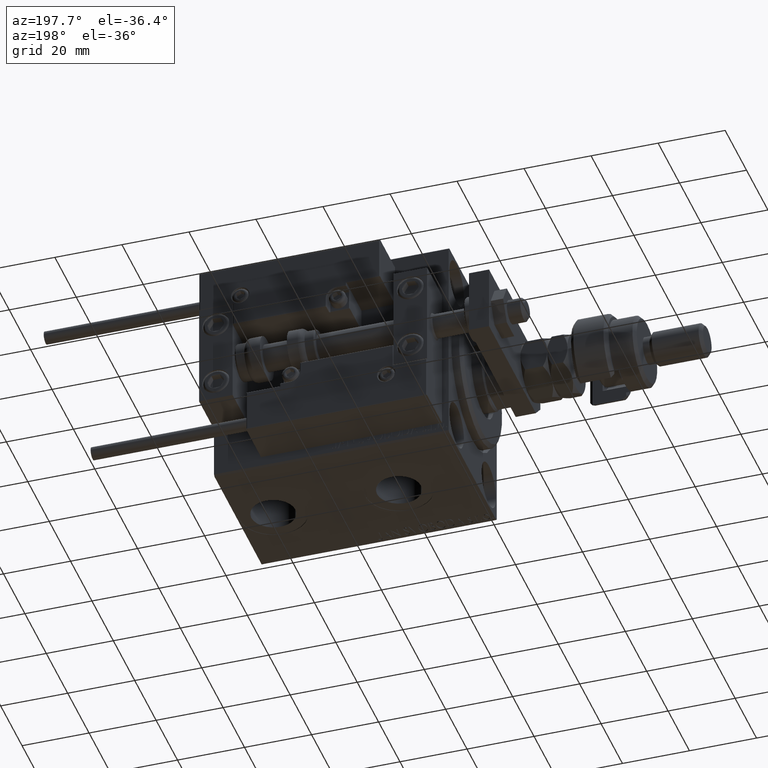
[diagram: clean part render]
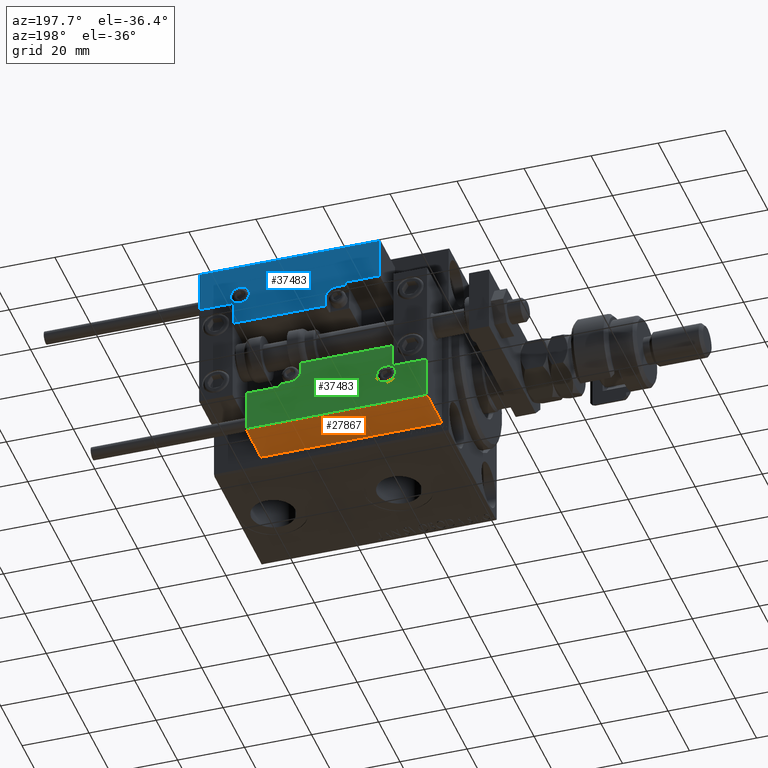
[diagram: same view with three faces highlighted in distinct colors, each labeled with its STEP entity id]
A machine part, auxiliary view with three faces highlighted in distinct colors.
Their STEP definitions:

[orange] entity #27867 — the highlighted planar face has unit normal (0, 0, 1).
#936 = CARTESIAN_POINT ( 'NONE',  ( 27.00000000000006395, 20.00000000000001776, 14.00000000000000000 ) ) ;
#9361 = EDGE_CURVE ( 'NONE', #43738, #37309, #24165, .T. ) ;
#10397 = PLANE ( 'NONE',  #49712 ) ;
#10932 = FACE_OUTER_BOUND ( 'NONE', #20922, .T. ) ;
#12456 = CARTESIAN_POINT ( 'NONE',  ( -26.99999999999993605, 20.00000000000002132, 0.000000000000000000 ) ) ;
#12812 = CARTESIAN_POINT ( 'NONE',  ( 27.00000000000006395, 20.00000000000001776, 13.70000000000000107 ) ) ;
#13449 = CARTESIAN_POINT ( 'NONE',  ( -26.99999999999993605, 20.00000000000002132, 13.70000000000000107 ) ) ;
#15071 = DIRECTION ( 'NONE',  ( -0.000000000000000000, -0.000000000000000000, -1.000000000000000000 ) ) ;
#15616 = LINE ( 'NONE', #32525, #41939 ) ;
#17835 = VECTOR ( 'NONE', #31191, 1000.000000000000000 ) ;
#18370 = DIRECTION ( 'NONE',  ( -0.000000000000000000, -0.000000000000000000, -1.000000000000000000 ) ) ;
#20922 = EDGE_LOOP ( 'NONE', ( #39310, #36367, #26504, #42927 ) ) ;
#22463 = DIRECTION ( 'NONE',  ( -6.424901762877063495E-17, -1.000000000000000000, 0.000000000000000000 ) ) ;
#23509 = EDGE_CURVE ( 'NONE', #46354, #37309, #43316, .T. ) ;
#23629 = EDGE_CURVE ( 'NONE', #43738, #52807, #15616, .T. ) ;
#24165 = LINE ( 'NONE', #36279, #34686 ) ;
#26157 = LINE ( 'NONE', #936, #49026 ) ;
#26504 = ORIENTED_EDGE ( 'NONE', *, *, #32685, .T. ) ;
#27553 = DIRECTION ( 'NONE',  ( 1.000000000000000000, -6.424901762877063495E-17, 0.000000000000000000 ) ) ;
#27867 = ADVANCED_FACE ( 'NONE', ( #10932 ), #10397, .F. ) ;
#31191 = DIRECTION ( 'NONE',  ( -1.000000000000000000, 6.424901762877062263E-17, 0.000000000000000000 ) ) ;
#31245 = CARTESIAN_POINT ( 'NONE',  ( 27.00000000000006395, 20.00000000000001776, 0.000000000000000000 ) ) ;
#32525 = CARTESIAN_POINT ( 'NONE',  ( 27.00000000000006395, 20.00000000000001776, 13.70000000000000107 ) ) ;
#32685 = EDGE_CURVE ( 'NONE', #52807, #46354, #26157, .T. ) ;
#34686 = VECTOR ( 'NONE', #15071, 1000.000000000000000 ) ;
#35104 = CARTESIAN_POINT ( 'NONE',  ( 27.00000000000006395, 20.00000000000001776, 14.00000000000000000 ) ) ;
#36279 = CARTESIAN_POINT ( 'NONE',  ( -26.99999999999993605, 20.00000000000002132, 14.00000000000000000 ) ) ;
#36367 = ORIENTED_EDGE ( 'NONE', *, *, #23629, .T. ) ;
#37309 = VERTEX_POINT ( 'NONE', #12456 ) ;
#38730 = CARTESIAN_POINT ( 'NONE',  ( 27.00000000000006395, 20.00000000000001776, 0.000000000000000000 ) ) ;
#39310 = ORIENTED_EDGE ( 'NONE', *, *, #9361, .F. ) ;
#41939 = VECTOR ( 'NONE', #51927, 1000.000000000000000 ) ;
#42927 = ORIENTED_EDGE ( 'NONE', *, *, #23509, .T. ) ;
#43316 = LINE ( 'NONE', #38730, #17835 ) ;
#43738 = VERTEX_POINT ( 'NONE', #13449 ) ;
#46354 = VERTEX_POINT ( 'NONE', #31245 ) ;
#49026 = VECTOR ( 'NONE', #18370, 1000.000000000000000 ) ;
#49712 = AXIS2_PLACEMENT_3D ( 'NONE', #35104, #22463, #27553 ) ;
#51927 = DIRECTION ( 'NONE',  ( 1.000000000000000000, -6.424901762877063495E-17, -0.000000000000000000 ) ) ;
#52807 = VERTEX_POINT ( 'NONE', #12812 ) ;

[blue] entity #37483 — the highlighted planar face has unit normal (0, 1, -0).
#870 = EDGE_LOOP ( 'NONE', ( #4540, #37579, #13233, #35653, #52111, #46212, #8251, #15991, #1337, #9496, #46297 ) ) ;
#880 = CARTESIAN_POINT ( 'NONE',  ( 27.00000000000006395, 7.300000000000007816, 14.00000000000000000 ) ) ;
#1337 = ORIENTED_EDGE ( 'NONE', *, *, #47647, .T. ) ;
#2070 = CARTESIAN_POINT ( 'NONE',  ( -11.99999999999994849, 9.800000000000004263, 14.00000000000000000 ) ) ;
#2210 = VERTEX_POINT ( 'NONE', #38892 ) ;
#3527 = EDGE_CURVE ( 'NONE', #26136, #52571, #22685, .T. ) ;
#3815 = EDGE_CURVE ( 'NONE', #24429, #13550, #45649, .T. ) ;
#4118 = CARTESIAN_POINT ( 'NONE',  ( 10.69999999999999929, 0.3000000000000032085, 14.00000000000000000 ) ) ;
#4540 = ORIENTED_EDGE ( 'NONE', *, *, #40488, .T. ) ;
#4734 = LINE ( 'NONE', #46099, #41087 ) ;
#5435 = AXIS2_PLACEMENT_3D ( 'NONE', #40487, #45067, #32166 ) ;
#5741 = DIRECTION ( 'NONE',  ( 0.000000000000000000, -0.000000000000000000, -1.000000000000000000 ) ) ;
#6249 = EDGE_CURVE ( 'NONE', #8359, #7219, #31634, .T. ) ;
#6537 = CARTESIAN_POINT ( 'NONE',  ( 16.69999999999999929, 7.300000000000009592, 14.00000000000000000 ) ) ;
#7219 = VERTEX_POINT ( 'NONE', #6537 ) ;
#7314 = EDGE_CURVE ( 'NONE', #23072, #45921, #19132, .T. ) ;
#7668 = EDGE_CURVE ( 'NONE', #32443, #2210, #28581, .T. ) ;
#8251 = ORIENTED_EDGE ( 'NONE', *, *, #50049, .T. ) ;
#8359 = VERTEX_POINT ( 'NONE', #19664 ) ;
#9496 = ORIENTED_EDGE ( 'NONE', *, *, #3527, .T. ) ;
#10800 = FACE_OUTER_BOUND ( 'NONE', #870, .T. ) ;
#11329 = FACE_BOUND ( 'NONE', #17893, .T. ) ;
#12038 = LINE ( 'NONE', #12566, #21619 ) ;
#12566 = CARTESIAN_POINT ( 'NONE',  ( 17.00000000000000000, 6.300000000000003375, 14.00000000000000000 ) ) ;
#12605 = CARTESIAN_POINT ( 'NONE',  ( 26.70000000000006324, 20.00000000000001776, 14.00000000000000000 ) ) ;
#12957 = CARTESIAN_POINT ( 'NONE',  ( -26.99999999999993605, 19.70000000000002061, 14.00000000000000000 ) ) ;
#13049 = DIRECTION ( 'NONE',  ( -0.000000000000000000, 1.000000000000000000, -0.000000000000000000 ) ) ;
#13233 = ORIENTED_EDGE ( 'NONE', *, *, #28048, .T. ) ;
#13550 = VERTEX_POINT ( 'NONE', #28546 ) ;
#13634 = VERTEX_POINT ( 'NONE', #4118 ) ;
#15180 = DIRECTION ( 'NONE',  ( -8.006416042969869188E-16, -1.000000000000000000, 0.000000000000000000 ) ) ;
#15827 = DIRECTION ( 'NONE',  ( 1.000000000000000000, 0.000000000000000000, 0.000000000000000000 ) ) ;
#15991 = ORIENTED_EDGE ( 'NONE', *, *, #7314, .T. ) ;
#16061 = EDGE_CURVE ( 'NONE', #45411, #13634, #19339, .T. ) ;
#16116 = VECTOR ( 'NONE', #48635, 1000.000000000000000 ) ;
#16427 = VECTOR ( 'NONE', #15180, 1000.000000000000000 ) ;
#17893 = EDGE_LOOP ( 'NONE', ( #20868, #24049 ) ) ;
#18273 = DIRECTION ( 'NONE',  ( 1.000000000000000000, -0.000000000000000000, 0.000000000000000000 ) ) ;
#18308 = DIRECTION ( 'NONE',  ( -0.000000000000000000, 0.000000000000000000, 1.000000000000000000 ) ) ;
#18716 = EDGE_CURVE ( 'NONE', #13550, #24429, #21141, .T. ) ;
#18927 = CARTESIAN_POINT ( 'NONE',  ( -26.69999999999994600, 7.000000000000005329, 14.00000000000000000 ) ) ;
#19132 = LINE ( 'NONE', #12605, #43215 ) ;
#19339 = LINE ( 'NONE', #27124, #33890 ) ;
#19664 = CARTESIAN_POINT ( 'NONE',  ( 16.69999999999999929, 6.300000000000003375, 14.00000000000000000 ) ) ;
#20121 = DIRECTION ( 'NONE',  ( 0.000000000000000000, 1.000000000000000000, -0.000000000000000000 ) ) ;
#20656 = CARTESIAN_POINT ( 'NONE',  ( -26.69999999999994600, 7.300000000000005151, 14.00000000000000000 ) ) ;
#20868 = ORIENTED_EDGE ( 'NONE', *, *, #3815, .T. ) ;
#20908 = LINE ( 'NONE', #45122, #16116 ) ;
#21141 = CIRCLE ( 'NONE', #28003, 2.800000000000000266 ) ;
#21619 = VECTOR ( 'NONE', #39789, 1000.000000000000000 ) ;
#21661 = CARTESIAN_POINT ( 'NONE',  ( 10.69999999999999929, 3.000000000000003109, 14.00000000000000000 ) ) ;
#21842 = LINE ( 'NONE', #30443, #39479 ) ;
#22685 = LINE ( 'NONE', #18927, #16427 ) ;
#23072 = VERTEX_POINT ( 'NONE', #46348 ) ;
#23121 = VECTOR ( 'NONE', #29335, 1000.000000000000000 ) ;
#24049 = ORIENTED_EDGE ( 'NONE', *, *, #18716, .T. ) ;
#24429 = VERTEX_POINT ( 'NONE', #2070 ) ;
#25340 = DIRECTION ( 'NONE',  ( 1.000000000000000000, 0.000000000000000000, 0.000000000000000000 ) ) ;
#26136 = VERTEX_POINT ( 'NONE', #43793 ) ;
#27124 = CARTESIAN_POINT ( 'NONE',  ( 11.00000000000000000, 0.3000000000000032085, 14.00000000000000000 ) ) ;
#27866 = CARTESIAN_POINT ( 'NONE',  ( 26.70000000000006324, 19.70000000000001705, 14.00000000000000000 ) ) ;
#28003 = AXIS2_PLACEMENT_3D ( 'NONE', #48891, #48372, #15827 ) ;
#28048 = EDGE_CURVE ( 'NONE', #13634, #32443, #4734, .T. ) ;
#28546 = CARTESIAN_POINT ( 'NONE',  ( -17.59999999999994813, 9.800000000000004263, 14.00000000000000000 ) ) ;
#28581 = CIRCLE ( 'NONE', #5435, 3.299999999999997158 ) ;
#29335 = DIRECTION ( 'NONE',  ( -1.000000000000000000, 6.424901762877063495E-17, -0.000000000000000000 ) ) ;
#30167 = EDGE_CURVE ( 'NONE', #52571, #50311, #21842, .T. ) ;
#30443 = CARTESIAN_POINT ( 'NONE',  ( -16.99999999999999289, 7.300000000000003375, 14.00000000000000000 ) ) ;
#31100 = VECTOR ( 'NONE', #39981, 1000.000000000000000 ) ;
#31634 = LINE ( 'NONE', #43753, #31100 ) ;
#32166 = DIRECTION ( 'NONE',  ( 1.000000000000000000, 0.000000000000000000, 0.000000000000000000 ) ) ;
#32443 = VERTEX_POINT ( 'NONE', #21661 ) ;
#33685 = CARTESIAN_POINT ( 'NONE',  ( -14.79999999999994920, 9.800000000000004263, 14.00000000000000000 ) ) ;
#33890 = VECTOR ( 'NONE', #18273, 1000.000000000000000 ) ;
#35242 = PLANE ( 'NONE',  #50050 ) ;
#35653 = ORIENTED_EDGE ( 'NONE', *, *, #7668, .T. ) ;
#35723 = EDGE_CURVE ( 'NONE', #2210, #8359, #12038, .T. ) ;
#35777 = DIRECTION ( 'NONE',  ( 1.000000000000000000, 0.000000000000000000, 0.000000000000000000 ) ) ;
#36762 = CARTESIAN_POINT ( 'NONE',  ( -16.69999999999999218, 7.300000000000003375, 14.00000000000000000 ) ) ;
#37142 = LINE ( 'NONE', #12957, #23121 ) ;
#37483 = ADVANCED_FACE ( 'NONE', ( #11329, #10800 ), #35242, .T. ) ;
#37579 = ORIENTED_EDGE ( 'NONE', *, *, #16061, .T. ) ;
#38892 = CARTESIAN_POINT ( 'NONE',  ( 13.99999999999999822, 6.300000000000001599, 14.00000000000000000 ) ) ;
#39479 = VECTOR ( 'NONE', #46068, 1000.000000000000000 ) ;
#39789 = DIRECTION ( 'NONE',  ( 1.000000000000000000, 5.782411586589357639E-16, -0.000000000000000000 ) ) ;
#39981 = DIRECTION ( 'NONE',  ( 9.912705577010318647E-16, 1.000000000000000000, 0.000000000000000000 ) ) ;
#40399 = VECTOR ( 'NONE', #44981, 1000.000000000000000 ) ;
#40487 = CARTESIAN_POINT ( 'NONE',  ( 13.99999999999999822, 3.000000000000002665, 14.00000000000000000 ) ) ;
#40488 = EDGE_CURVE ( 'NONE', #50311, #45411, #20908, .T. ) ;
#41087 = VECTOR ( 'NONE', #13049, 1000.000000000000000 ) ;
#41197 = LINE ( 'NONE', #880, #40399 ) ;
#42203 = AXIS2_PLACEMENT_3D ( 'NONE', #33685, #5741, #25340 ) ;
#43215 = VECTOR ( 'NONE', #20121, 1000.000000000000000 ) ;
#43753 = CARTESIAN_POINT ( 'NONE',  ( 16.69999999999999929, 7.000000000000009770, 14.00000000000000000 ) ) ;
#43793 = CARTESIAN_POINT ( 'NONE',  ( -26.69999999999993534, 19.70000000000002061, 14.00000000000000000 ) ) ;
#44735 = CARTESIAN_POINT ( 'NONE',  ( -16.69999999999999218, 0.3000000000000032085, 14.00000000000000000 ) ) ;
#44981 = DIRECTION ( 'NONE',  ( 1.000000000000000000, -1.734723475976796001E-16, 0.000000000000000000 ) ) ;
#45067 = DIRECTION ( 'NONE',  ( 0.000000000000000000, -0.000000000000000000, -1.000000000000000000 ) ) ;
#45122 = CARTESIAN_POINT ( 'NONE',  ( -16.69999999999999218, 3.252606517456513302E-15, 14.00000000000000000 ) ) ;
#45411 = VERTEX_POINT ( 'NONE', #44735 ) ;
#45649 = CIRCLE ( 'NONE', #42203, 2.800000000000000266 ) ;
#45921 = VERTEX_POINT ( 'NONE', #27866 ) ;
#46068 = DIRECTION ( 'NONE',  ( 1.000000000000000000, -1.734723475976815230E-16, 0.000000000000000000 ) ) ;
#46099 = CARTESIAN_POINT ( 'NONE',  ( 10.69999999999999929, 3.000000000000003109, 14.00000000000000000 ) ) ;
#46212 = ORIENTED_EDGE ( 'NONE', *, *, #6249, .T. ) ;
#46297 = ORIENTED_EDGE ( 'NONE', *, *, #30167, .T. ) ;
#46348 = CARTESIAN_POINT ( 'NONE',  ( 26.70000000000006324, 7.300000000000007816, 14.00000000000000000 ) ) ;
#47647 = EDGE_CURVE ( 'NONE', #45921, #26136, #37142, .T. ) ;
#48372 = DIRECTION ( 'NONE',  ( 0.000000000000000000, -0.000000000000000000, -1.000000000000000000 ) ) ;
#48635 = DIRECTION ( 'NONE',  ( 0.000000000000000000, -1.000000000000000000, 0.000000000000000000 ) ) ;
#48891 = CARTESIAN_POINT ( 'NONE',  ( -14.79999999999994920, 9.800000000000004263, 14.00000000000000000 ) ) ;
#50049 = EDGE_CURVE ( 'NONE', #7219, #23072, #41197, .T. ) ;
#50050 = AXIS2_PLACEMENT_3D ( 'NONE', #51660, #18308, #35777 ) ;
#50311 = VERTEX_POINT ( 'NONE', #36762 ) ;
#51660 = CARTESIAN_POINT ( 'NONE',  ( 0.000000000000000000, 0.000000000000000000, 14.00000000000000000 ) ) ;
#52111 = ORIENTED_EDGE ( 'NONE', *, *, #35723, .T. ) ;
#52571 = VERTEX_POINT ( 'NONE', #20656 ) ;

[green] entity #37483 — the highlighted planar face has unit normal (-0, 1, -0).
#870 = EDGE_LOOP ( 'NONE', ( #4540, #37579, #13233, #35653, #52111, #46212, #8251, #15991, #1337, #9496, #46297 ) ) ;
#880 = CARTESIAN_POINT ( 'NONE',  ( 27.00000000000006395, 7.300000000000007816, 14.00000000000000000 ) ) ;
#1337 = ORIENTED_EDGE ( 'NONE', *, *, #47647, .T. ) ;
#2070 = CARTESIAN_POINT ( 'NONE',  ( -11.99999999999994849, 9.800000000000004263, 14.00000000000000000 ) ) ;
#2210 = VERTEX_POINT ( 'NONE', #38892 ) ;
#3527 = EDGE_CURVE ( 'NONE', #26136, #52571, #22685, .T. ) ;
#3815 = EDGE_CURVE ( 'NONE', #24429, #13550, #45649, .T. ) ;
#4118 = CARTESIAN_POINT ( 'NONE',  ( 10.69999999999999929, 0.3000000000000032085, 14.00000000000000000 ) ) ;
#4540 = ORIENTED_EDGE ( 'NONE', *, *, #40488, .T. ) ;
#4734 = LINE ( 'NONE', #46099, #41087 ) ;
#5435 = AXIS2_PLACEMENT_3D ( 'NONE', #40487, #45067, #32166 ) ;
#5741 = DIRECTION ( 'NONE',  ( 0.000000000000000000, -0.000000000000000000, -1.000000000000000000 ) ) ;
#6249 = EDGE_CURVE ( 'NONE', #8359, #7219, #31634, .T. ) ;
#6537 = CARTESIAN_POINT ( 'NONE',  ( 16.69999999999999929, 7.300000000000009592, 14.00000000000000000 ) ) ;
#7219 = VERTEX_POINT ( 'NONE', #6537 ) ;
#7314 = EDGE_CURVE ( 'NONE', #23072, #45921, #19132, .T. ) ;
#7668 = EDGE_CURVE ( 'NONE', #32443, #2210, #28581, .T. ) ;
#8251 = ORIENTED_EDGE ( 'NONE', *, *, #50049, .T. ) ;
#8359 = VERTEX_POINT ( 'NONE', #19664 ) ;
#9496 = ORIENTED_EDGE ( 'NONE', *, *, #3527, .T. ) ;
#10800 = FACE_OUTER_BOUND ( 'NONE', #870, .T. ) ;
#11329 = FACE_BOUND ( 'NONE', #17893, .T. ) ;
#12038 = LINE ( 'NONE', #12566, #21619 ) ;
#12566 = CARTESIAN_POINT ( 'NONE',  ( 17.00000000000000000, 6.300000000000003375, 14.00000000000000000 ) ) ;
#12605 = CARTESIAN_POINT ( 'NONE',  ( 26.70000000000006324, 20.00000000000001776, 14.00000000000000000 ) ) ;
#12957 = CARTESIAN_POINT ( 'NONE',  ( -26.99999999999993605, 19.70000000000002061, 14.00000000000000000 ) ) ;
#13049 = DIRECTION ( 'NONE',  ( -0.000000000000000000, 1.000000000000000000, -0.000000000000000000 ) ) ;
#13233 = ORIENTED_EDGE ( 'NONE', *, *, #28048, .T. ) ;
#13550 = VERTEX_POINT ( 'NONE', #28546 ) ;
#13634 = VERTEX_POINT ( 'NONE', #4118 ) ;
#15180 = DIRECTION ( 'NONE',  ( -8.006416042969869188E-16, -1.000000000000000000, 0.000000000000000000 ) ) ;
#15827 = DIRECTION ( 'NONE',  ( 1.000000000000000000, 0.000000000000000000, 0.000000000000000000 ) ) ;
#15991 = ORIENTED_EDGE ( 'NONE', *, *, #7314, .T. ) ;
#16061 = EDGE_CURVE ( 'NONE', #45411, #13634, #19339, .T. ) ;
#16116 = VECTOR ( 'NONE', #48635, 1000.000000000000000 ) ;
#16427 = VECTOR ( 'NONE', #15180, 1000.000000000000000 ) ;
#17893 = EDGE_LOOP ( 'NONE', ( #20868, #24049 ) ) ;
#18273 = DIRECTION ( 'NONE',  ( 1.000000000000000000, -0.000000000000000000, 0.000000000000000000 ) ) ;
#18308 = DIRECTION ( 'NONE',  ( -0.000000000000000000, 0.000000000000000000, 1.000000000000000000 ) ) ;
#18716 = EDGE_CURVE ( 'NONE', #13550, #24429, #21141, .T. ) ;
#18927 = CARTESIAN_POINT ( 'NONE',  ( -26.69999999999994600, 7.000000000000005329, 14.00000000000000000 ) ) ;
#19132 = LINE ( 'NONE', #12605, #43215 ) ;
#19339 = LINE ( 'NONE', #27124, #33890 ) ;
#19664 = CARTESIAN_POINT ( 'NONE',  ( 16.69999999999999929, 6.300000000000003375, 14.00000000000000000 ) ) ;
#20121 = DIRECTION ( 'NONE',  ( 0.000000000000000000, 1.000000000000000000, -0.000000000000000000 ) ) ;
#20656 = CARTESIAN_POINT ( 'NONE',  ( -26.69999999999994600, 7.300000000000005151, 14.00000000000000000 ) ) ;
#20868 = ORIENTED_EDGE ( 'NONE', *, *, #3815, .T. ) ;
#20908 = LINE ( 'NONE', #45122, #16116 ) ;
#21141 = CIRCLE ( 'NONE', #28003, 2.800000000000000266 ) ;
#21619 = VECTOR ( 'NONE', #39789, 1000.000000000000000 ) ;
#21661 = CARTESIAN_POINT ( 'NONE',  ( 10.69999999999999929, 3.000000000000003109, 14.00000000000000000 ) ) ;
#21842 = LINE ( 'NONE', #30443, #39479 ) ;
#22685 = LINE ( 'NONE', #18927, #16427 ) ;
#23072 = VERTEX_POINT ( 'NONE', #46348 ) ;
#23121 = VECTOR ( 'NONE', #29335, 1000.000000000000000 ) ;
#24049 = ORIENTED_EDGE ( 'NONE', *, *, #18716, .T. ) ;
#24429 = VERTEX_POINT ( 'NONE', #2070 ) ;
#25340 = DIRECTION ( 'NONE',  ( 1.000000000000000000, 0.000000000000000000, 0.000000000000000000 ) ) ;
#26136 = VERTEX_POINT ( 'NONE', #43793 ) ;
#27124 = CARTESIAN_POINT ( 'NONE',  ( 11.00000000000000000, 0.3000000000000032085, 14.00000000000000000 ) ) ;
#27866 = CARTESIAN_POINT ( 'NONE',  ( 26.70000000000006324, 19.70000000000001705, 14.00000000000000000 ) ) ;
#28003 = AXIS2_PLACEMENT_3D ( 'NONE', #48891, #48372, #15827 ) ;
#28048 = EDGE_CURVE ( 'NONE', #13634, #32443, #4734, .T. ) ;
#28546 = CARTESIAN_POINT ( 'NONE',  ( -17.59999999999994813, 9.800000000000004263, 14.00000000000000000 ) ) ;
#28581 = CIRCLE ( 'NONE', #5435, 3.299999999999997158 ) ;
#29335 = DIRECTION ( 'NONE',  ( -1.000000000000000000, 6.424901762877063495E-17, -0.000000000000000000 ) ) ;
#30167 = EDGE_CURVE ( 'NONE', #52571, #50311, #21842, .T. ) ;
#30443 = CARTESIAN_POINT ( 'NONE',  ( -16.99999999999999289, 7.300000000000003375, 14.00000000000000000 ) ) ;
#31100 = VECTOR ( 'NONE', #39981, 1000.000000000000000 ) ;
#31634 = LINE ( 'NONE', #43753, #31100 ) ;
#32166 = DIRECTION ( 'NONE',  ( 1.000000000000000000, 0.000000000000000000, 0.000000000000000000 ) ) ;
#32443 = VERTEX_POINT ( 'NONE', #21661 ) ;
#33685 = CARTESIAN_POINT ( 'NONE',  ( -14.79999999999994920, 9.800000000000004263, 14.00000000000000000 ) ) ;
#33890 = VECTOR ( 'NONE', #18273, 1000.000000000000000 ) ;
#35242 = PLANE ( 'NONE',  #50050 ) ;
#35653 = ORIENTED_EDGE ( 'NONE', *, *, #7668, .T. ) ;
#35723 = EDGE_CURVE ( 'NONE', #2210, #8359, #12038, .T. ) ;
#35777 = DIRECTION ( 'NONE',  ( 1.000000000000000000, 0.000000000000000000, 0.000000000000000000 ) ) ;
#36762 = CARTESIAN_POINT ( 'NONE',  ( -16.69999999999999218, 7.300000000000003375, 14.00000000000000000 ) ) ;
#37142 = LINE ( 'NONE', #12957, #23121 ) ;
#37483 = ADVANCED_FACE ( 'NONE', ( #11329, #10800 ), #35242, .T. ) ;
#37579 = ORIENTED_EDGE ( 'NONE', *, *, #16061, .T. ) ;
#38892 = CARTESIAN_POINT ( 'NONE',  ( 13.99999999999999822, 6.300000000000001599, 14.00000000000000000 ) ) ;
#39479 = VECTOR ( 'NONE', #46068, 1000.000000000000000 ) ;
#39789 = DIRECTION ( 'NONE',  ( 1.000000000000000000, 5.782411586589357639E-16, -0.000000000000000000 ) ) ;
#39981 = DIRECTION ( 'NONE',  ( 9.912705577010318647E-16, 1.000000000000000000, 0.000000000000000000 ) ) ;
#40399 = VECTOR ( 'NONE', #44981, 1000.000000000000000 ) ;
#40487 = CARTESIAN_POINT ( 'NONE',  ( 13.99999999999999822, 3.000000000000002665, 14.00000000000000000 ) ) ;
#40488 = EDGE_CURVE ( 'NONE', #50311, #45411, #20908, .T. ) ;
#41087 = VECTOR ( 'NONE', #13049, 1000.000000000000000 ) ;
#41197 = LINE ( 'NONE', #880, #40399 ) ;
#42203 = AXIS2_PLACEMENT_3D ( 'NONE', #33685, #5741, #25340 ) ;
#43215 = VECTOR ( 'NONE', #20121, 1000.000000000000000 ) ;
#43753 = CARTESIAN_POINT ( 'NONE',  ( 16.69999999999999929, 7.000000000000009770, 14.00000000000000000 ) ) ;
#43793 = CARTESIAN_POINT ( 'NONE',  ( -26.69999999999993534, 19.70000000000002061, 14.00000000000000000 ) ) ;
#44735 = CARTESIAN_POINT ( 'NONE',  ( -16.69999999999999218, 0.3000000000000032085, 14.00000000000000000 ) ) ;
#44981 = DIRECTION ( 'NONE',  ( 1.000000000000000000, -1.734723475976796001E-16, 0.000000000000000000 ) ) ;
#45067 = DIRECTION ( 'NONE',  ( 0.000000000000000000, -0.000000000000000000, -1.000000000000000000 ) ) ;
#45122 = CARTESIAN_POINT ( 'NONE',  ( -16.69999999999999218, 3.252606517456513302E-15, 14.00000000000000000 ) ) ;
#45411 = VERTEX_POINT ( 'NONE', #44735 ) ;
#45649 = CIRCLE ( 'NONE', #42203, 2.800000000000000266 ) ;
#45921 = VERTEX_POINT ( 'NONE', #27866 ) ;
#46068 = DIRECTION ( 'NONE',  ( 1.000000000000000000, -1.734723475976815230E-16, 0.000000000000000000 ) ) ;
#46099 = CARTESIAN_POINT ( 'NONE',  ( 10.69999999999999929, 3.000000000000003109, 14.00000000000000000 ) ) ;
#46212 = ORIENTED_EDGE ( 'NONE', *, *, #6249, .T. ) ;
#46297 = ORIENTED_EDGE ( 'NONE', *, *, #30167, .T. ) ;
#46348 = CARTESIAN_POINT ( 'NONE',  ( 26.70000000000006324, 7.300000000000007816, 14.00000000000000000 ) ) ;
#47647 = EDGE_CURVE ( 'NONE', #45921, #26136, #37142, .T. ) ;
#48372 = DIRECTION ( 'NONE',  ( 0.000000000000000000, -0.000000000000000000, -1.000000000000000000 ) ) ;
#48635 = DIRECTION ( 'NONE',  ( 0.000000000000000000, -1.000000000000000000, 0.000000000000000000 ) ) ;
#48891 = CARTESIAN_POINT ( 'NONE',  ( -14.79999999999994920, 9.800000000000004263, 14.00000000000000000 ) ) ;
#50049 = EDGE_CURVE ( 'NONE', #7219, #23072, #41197, .T. ) ;
#50050 = AXIS2_PLACEMENT_3D ( 'NONE', #51660, #18308, #35777 ) ;
#50311 = VERTEX_POINT ( 'NONE', #36762 ) ;
#51660 = CARTESIAN_POINT ( 'NONE',  ( 0.000000000000000000, 0.000000000000000000, 14.00000000000000000 ) ) ;
#52111 = ORIENTED_EDGE ( 'NONE', *, *, #35723, .T. ) ;
#52571 = VERTEX_POINT ( 'NONE', #20656 ) ;